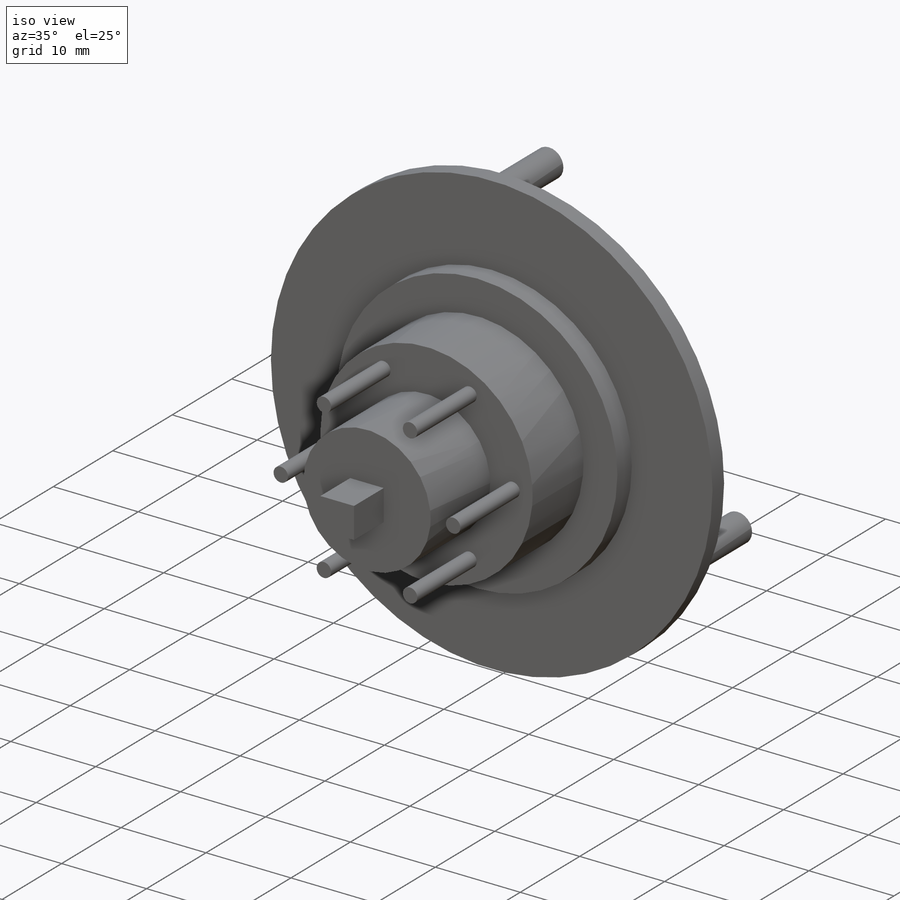
[diagram: iso view]
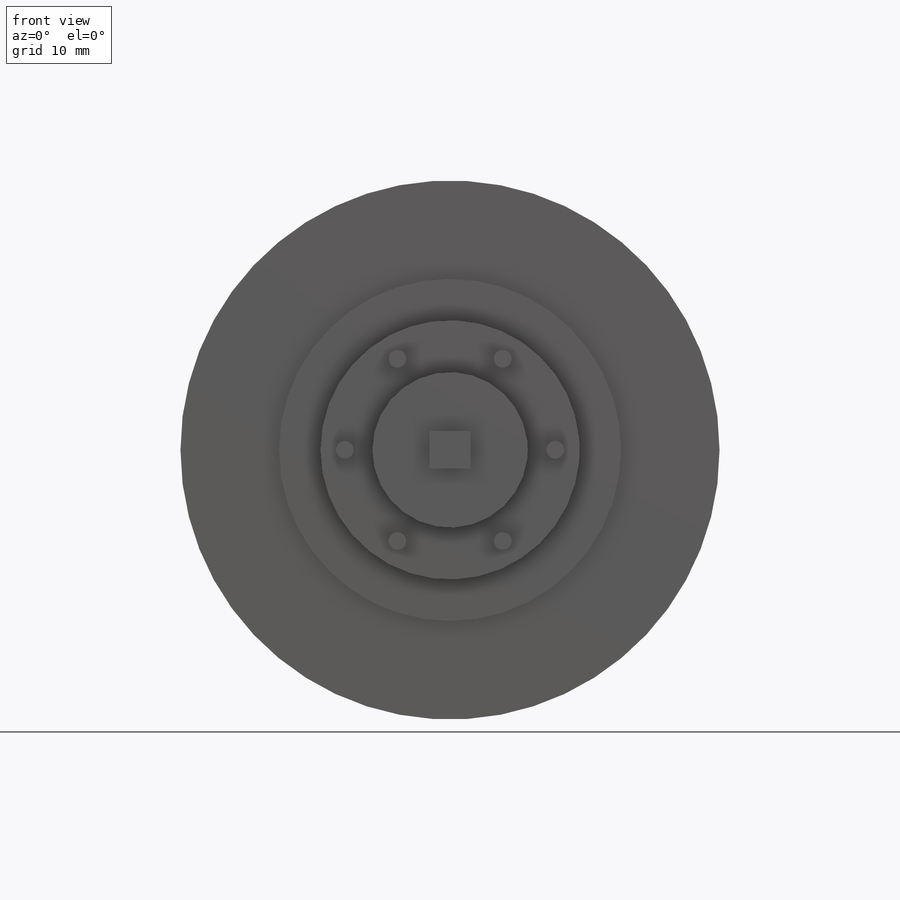
[diagram: front view]
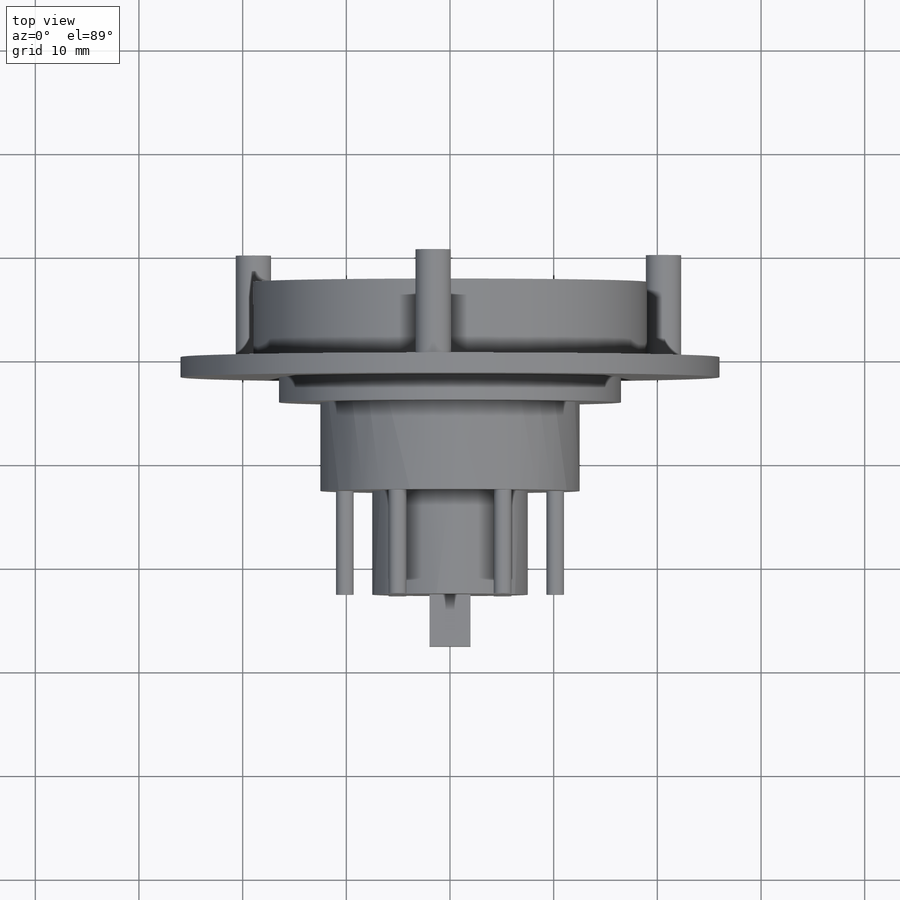
[diagram: top view]
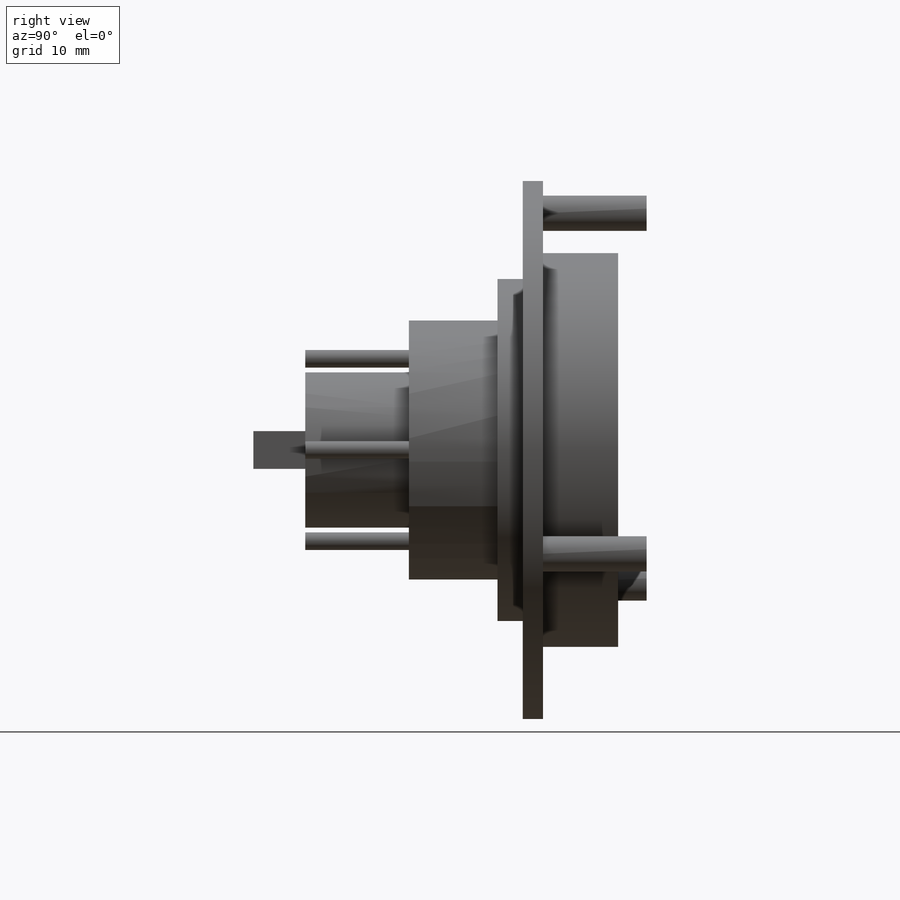
[diagram: right view]
SOLIDWORKS PART (.sldprt)
format: sldprt  version: not decoded by parser v0  size: 207,360 bytes
history: native  units: mm
features: sketch x8, extrude x8, material x1 (+16 scaffold rows collapsed)
feature tree (33):
  scaffold x16  (default folders/planes/origin — collapsed)
  material  "Material <not specified>"
  sketch  "Sketch1"  dims[D1=52.0mm]
  extrude  "Boss-Extrude1"  Depth=1.95mm
  sketch  "Sketch2"  dims[D1=38.0mm]
  extrude  "Boss-Extrude2"  Depth=7.25mm
  sketch  "Sketch3"  dims[D1=33.0mm]
  extrude  "Boss-Extrude3"  Depth=2.43mm
  sketch  "Sketch4"  dims[D1=25.0mm]
  extrude  "Boss-Extrude4"  Depth=8.55mm
  sketch  "Sketch5"  dims[D1=15.0mm]
  extrude  "Boss-Extrude5"  Depth=10mm
  sketch  "Sketch6"  dims[D2=3.4mm D1=3.1mm D4=120.0deg D5=22.9mm D3=3.0]
  extrude  "Boss-Extrude6"  Depth=10mm
  sketch  "Sketch7"  dims[D1=1.7mm D2=2.35mm D4=10.15mm D3=6.0]
  extrude  "Boss-Extrude7"  Depth=10mm
  sketch  "Sketch8"
  extrude  "Boss-Extrude8"  Depth=5mm
decode coverage: 15 of 16 modeling features carry decoded parameters
note: suppression state not decoded; provenance and decode notes live in map.json
